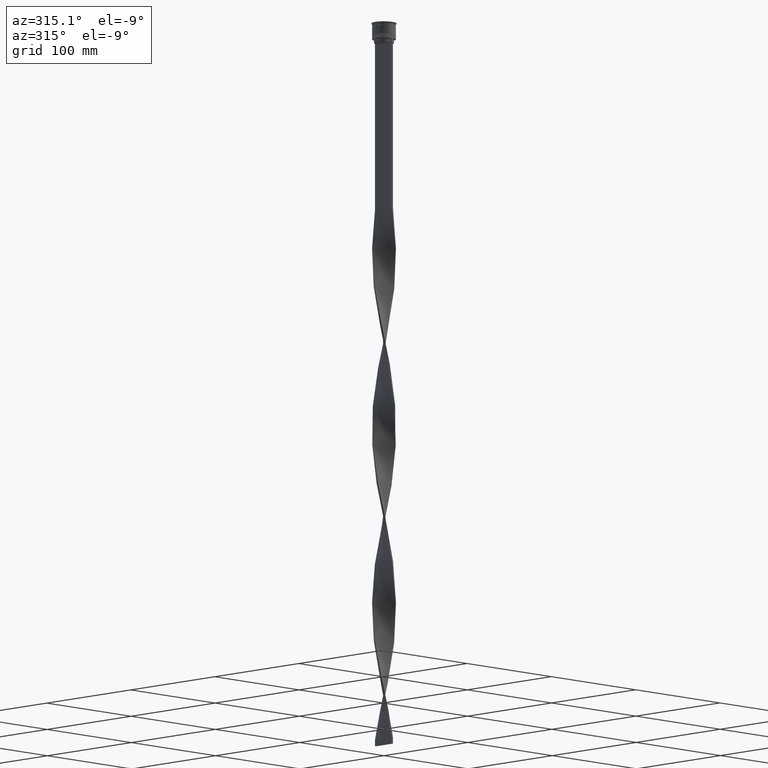
[diagram: clean part render]
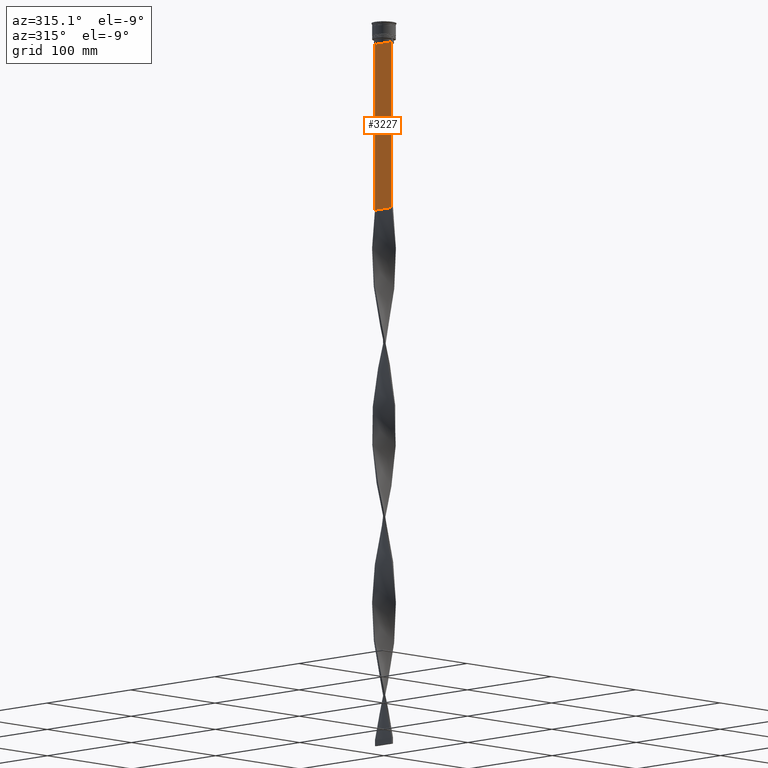
[diagram: same view with one face highlighted and labeled with its STEP entity id]
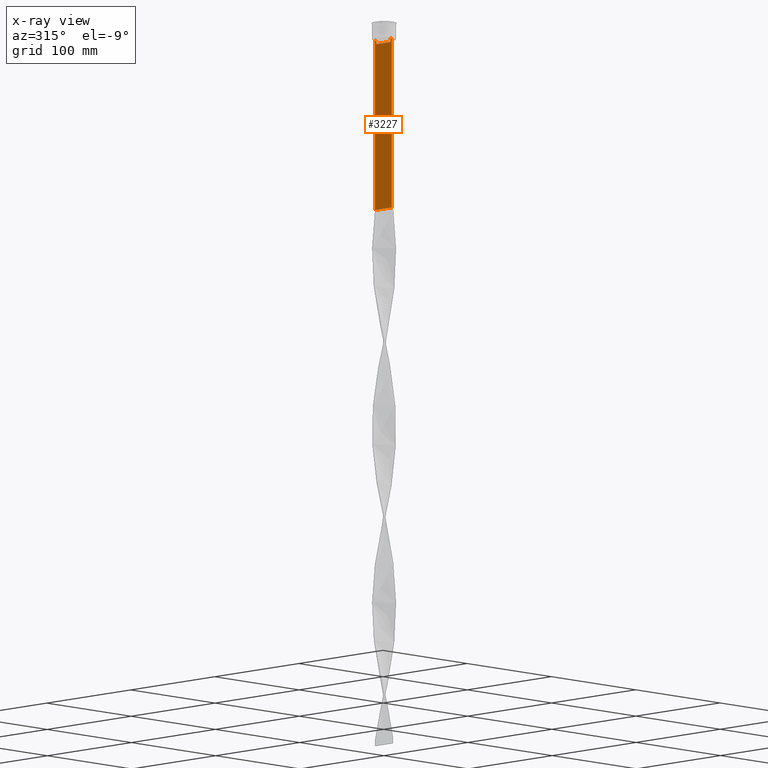
[diagram: x-ray of the same camera — body ghosted, the highlighted face saturated]
A machine part, auxiliary view. The second image highlights one B-rep face of the part: STEP entity #3227.
The next image is the same camera in x-ray: the body ghosted, the highlighted face saturated — about 0% of this face is hidden behind the body in this view.
In plain terms, the highlighted planar face has unit normal (-1, 0, 0).
Its self-contained STEP definition (entity closure, byte-faithful):
#90 = CARTESIAN_POINT ( 'NONE',  ( -0.7499999999999997780, -8.366450860430608927, 0.000000000000000000 ) ) ;
#146 = CARTESIAN_POINT ( 'NONE',  ( -0.7499999999999997780, -8.701063080777123204, -14.16668447713511547 ) ) ;
#181 = LINE ( 'NONE', #1965, #2978 ) ;
#241 = ORIENTED_EDGE ( 'NONE', *, *, #2890, .F. ) ;
#296 = VECTOR ( 'NONE', #2449, 1000.000000000000000 ) ;
#339 = CARTESIAN_POINT ( 'NONE',  ( -0.7499999999999997780, -8.868342573446296839, -14.00000000000000178 ) ) ;
#343 = CARTESIAN_POINT ( 'NONE',  ( -0.7499999999999997780, 9.871550030263740894, -14.00000000000000178 ) ) ;
#357 = EDGE_CURVE ( 'NONE', #772, #1950, #2694, .T. ) ;
#474 = CARTESIAN_POINT ( 'NONE',  ( -0.7499999999999997780, -8.366450860430608927, -17.00000000000000000 ) ) ;
#530 = AXIS2_PLACEMENT_3D ( 'NONE', #3839, #4191, #4486 ) ;
#606 = VECTOR ( 'NONE', #3331, 1000.000000000000000 ) ;
#617 = EDGE_CURVE ( 'NONE', #3863, #2090, #1628, .T. ) ;
#679 = CARTESIAN_POINT ( 'NONE',  ( -0.7499999999999997780, -10.00000000000000533, -14.00000000000000178 ) ) ;
#772 = VERTEX_POINT ( 'NONE', #339 ) ;
#936 = VERTEX_POINT ( 'NONE', #1224 ) ;
#937 = DIRECTION ( 'NONE',  ( 0.000000000000000000, -1.000000000000000000, 0.000000000000000000 ) ) ;
#942 = CARTESIAN_POINT ( 'NONE',  ( -0.7499999999999997780, -8.366450860430608927, -14.50000000000000000 ) ) ;
#971 = CARTESIAN_POINT ( 'NONE',  ( -0.7499999999999997780, -10.00000000000000533, -14.00000000000000178 ) ) ;
#975 = EDGE_CURVE ( 'NONE', #1622, #2275, #1178, .T. ) ;
#1012 = EDGE_CURVE ( 'NONE', #1248, #3343, #3266, .T. ) ;
#1083 = CARTESIAN_POINT ( 'NONE',  ( -0.7499999999999997780, 8.701063075415252257, -14.16668448247791723 ) ) ;
#1164 = VERTEX_POINT ( 'NONE', #3361 ) ;
#1178 = LINE ( 'NONE', #3668, #606 ) ;
#1180 = LINE ( 'NONE', #3313, #4214 ) ;
#1189 = EDGE_CURVE ( 'NONE', #1302, #1786, #2960, .T. ) ;
#1192 = DIRECTION ( 'NONE',  ( 0.000000000000000000, -1.000000000000000000, 0.000000000000000000 ) ) ;
#1224 = CARTESIAN_POINT ( 'NONE',  ( -0.7499999999999997780, 8.366450860430608927, -17.00000000000000000 ) ) ;
#1239 = EDGE_CURVE ( 'NONE', #3343, #772, #2799, .T. ) ;
#1248 = VERTEX_POINT ( 'NONE', #474 ) ;
#1302 = VERTEX_POINT ( 'NONE', #343 ) ;
#1308 = DIRECTION ( 'NONE',  ( 0.000000000000000000, 0.000000000000000000, -1.000000000000000000 ) ) ;
#1375 = FACE_OUTER_BOUND ( 'NONE', #2875, .T. ) ;
#1400 = ORIENTED_EDGE ( 'NONE', *, *, #975, .T. ) ;
#1438 = ORIENTED_EDGE ( 'NONE', *, *, #3488, .F. ) ;
#1569 = CARTESIAN_POINT ( 'NONE',  ( -0.7499999999999997780, -8.533766903463440912, -14.33335220807192201 ) ) ;
#1622 = VERTEX_POINT ( 'NONE', #4124 ) ;
#1628 = LINE ( 'NONE', #4443, #4332 ) ;
#1640 = VECTOR ( 'NONE', #1192, 1000.000000000000000 ) ;
#1786 = VERTEX_POINT ( 'NONE', #3921 ) ;
#1935 = ORIENTED_EDGE ( 'NONE', *, *, #3191, .F. ) ;
#1950 = VERTEX_POINT ( 'NONE', #4113 ) ;
#1961 = CARTESIAN_POINT ( 'NONE',  ( -0.7499999999999997780, -8.366450860430608927, -14.50000000000000000 ) ) ;
#1965 = CARTESIAN_POINT ( 'NONE',  ( -0.7499999999999997780, 8.400000000000003908, -17.00000000000000000 ) ) ;
#1994 = ORIENTED_EDGE ( 'NONE', *, *, #1239, .F. ) ;
#2047 = DIRECTION ( 'NONE',  ( 0.000000000000000000, -1.000000000000000000, 0.000000000000000000 ) ) ;
#2063 = EDGE_CURVE ( 'NONE', #1950, #3863, #4137, .T. ) ;
#2085 = CARTESIAN_POINT ( 'NONE',  ( -0.7499999999999997780, 8.868342573446296839, -14.00000000000000178 ) ) ;
#2090 = VERTEX_POINT ( 'NONE', #2795 ) ;
#2228 = DIRECTION ( 'NONE',  ( -0.000000000000000000, -0.000000000000000000, 1.000000000000000000 ) ) ;
#2275 = VERTEX_POINT ( 'NONE', #4259 ) ;
#2423 = CARTESIAN_POINT ( 'NONE',  ( -0.7499999999999997780, -10.00000000000000533, -157.9999999999999716 ) ) ;
#2428 = B_SPLINE_CURVE_WITH_KNOTS ( 'NONE', 3,
 ( #2085, #1083, #2460, #4550 ),
 .UNSPECIFIED., .F., .F.,
 ( 4, 4 ),
 ( 0.01512225952876174867, 0.01583070519299695222 ),
 .UNSPECIFIED. ) ;
#2449 = DIRECTION ( 'NONE',  ( 0.000000000000000000, 1.000000000000000000, 0.000000000000000000 ) ) ;
#2460 = CARTESIAN_POINT ( 'NONE',  ( -0.7499999999999997780, 8.533766897779926808, -14.33335221373273782 ) ) ;
#2670 = ORIENTED_EDGE ( 'NONE', *, *, #1012, .F. ) ;
#2694 = LINE ( 'NONE', #4081, #3425 ) ;
#2795 = CARTESIAN_POINT ( 'NONE',  ( -0.7499999999999998890, -10.00000000000000533, -157.9999999999999716 ) ) ;
#2798 = PLANE ( 'NONE',  #530 ) ;
#2799 = B_SPLINE_CURVE_WITH_KNOTS ( 'NONE', 3,
 ( #1961, #1569, #146, #3655 ),
 .UNSPECIFIED., .F., .F.,
 ( 4, 4 ),
 ( 0.03866293624047253963, 0.03937282246709321309 ),
 .UNSPECIFIED. ) ;
#2821 = LINE ( 'NONE', #679, #4287 ) ;
#2875 = EDGE_LOOP ( 'NONE', ( #1438, #4563, #3917, #1400, #1935, #2951, #4500, #4399, #1994, #2670, #241, #4337 ) ) ;
#2890 = EDGE_CURVE ( 'NONE', #936, #1248, #181, .T. ) ;
#2951 = ORIENTED_EDGE ( 'NONE', *, *, #617, .F. ) ;
#2960 = LINE ( 'NONE', #4359, #1640 ) ;
#2978 = VECTOR ( 'NONE', #3383, 1000.000000000000000 ) ;
#3106 = EDGE_CURVE ( 'NONE', #1622, #1302, #2821, .T. ) ;
#3191 = EDGE_CURVE ( 'NONE', #2090, #2275, #4539, .T. ) ;
#3227 = ADVANCED_FACE ( 'NONE', ( #1375 ), #2798, .T. ) ;
#3266 = LINE ( 'NONE', #90, #4302 ) ;
#3313 = CARTESIAN_POINT ( 'NONE',  ( -0.7499999999999997780, 8.366450860430608927, 0.000000000000000000 ) ) ;
#3331 = DIRECTION ( 'NONE',  ( 0.000000000000000000, 0.000000000000000000, -1.000000000000000000 ) ) ;
#3343 = VERTEX_POINT ( 'NONE', #942 ) ;
#3361 = CARTESIAN_POINT ( 'NONE',  ( -0.7499999999999997780, 8.366450860430608927, -14.50000000000000000 ) ) ;
#3383 = DIRECTION ( 'NONE',  ( 0.000000000000000000, -1.000000000000000000, 0.000000000000000000 ) ) ;
#3425 = VECTOR ( 'NONE', #937, 1000.000000000000000 ) ;
#3488 = EDGE_CURVE ( 'NONE', #1786, #1164, #2428, .T. ) ;
#3644 = CARTESIAN_POINT ( 'NONE',  ( -0.7499999999999997780, -10.00000000000000533, -14.00000000000000178 ) ) ;
#3655 = CARTESIAN_POINT ( 'NONE',  ( -0.7499999999999997780, -8.868342573446296839, -14.00000000000000178 ) ) ;
#3668 = CARTESIAN_POINT ( 'NONE',  ( -0.7499999999999997780, 9.999999999999998224, 6.056171120131581098 ) ) ;
#3784 = DIRECTION ( 'NONE',  ( 0.000000000000000000, -1.000000000000000000, 0.000000000000000000 ) ) ;
#3839 = CARTESIAN_POINT ( 'NONE',  ( -0.7499999999999997780, -10.00000000000000533, 6.056171120131581098 ) ) ;
#3863 = VERTEX_POINT ( 'NONE', #3644 ) ;
#3917 = ORIENTED_EDGE ( 'NONE', *, *, #3106, .F. ) ;
#3921 = CARTESIAN_POINT ( 'NONE',  ( -0.7499999999999997780, 8.868342573446296839, -14.00000000000000178 ) ) ;
#4012 = EDGE_CURVE ( 'NONE', #1164, #936, #1180, .T. ) ;
#4081 = CARTESIAN_POINT ( 'NONE',  ( -0.7499999999999997780, -10.00000000000000533, -14.00000000000000178 ) ) ;
#4113 = CARTESIAN_POINT ( 'NONE',  ( -0.7499999999999997780, -9.871550030263740894, -14.00000000000000178 ) ) ;
#4124 = CARTESIAN_POINT ( 'NONE',  ( -0.7499999999999997780, 9.999999999999998224, -14.00000000000000178 ) ) ;
#4137 = LINE ( 'NONE', #971, #4430 ) ;
#4191 = DIRECTION ( 'NONE',  ( -1.000000000000000000, 0.000000000000000000, 0.000000000000000000 ) ) ;
#4214 = VECTOR ( 'NONE', #4254, 1000.000000000000000 ) ;
#4254 = DIRECTION ( 'NONE',  ( 0.000000000000000000, 0.000000000000000000, -1.000000000000000000 ) ) ;
#4259 = CARTESIAN_POINT ( 'NONE',  ( -0.7499999999999997780, 9.999999999999998224, -157.9999999999999716 ) ) ;
#4287 = VECTOR ( 'NONE', #2047, 1000.000000000000000 ) ;
#4302 = VECTOR ( 'NONE', #2228, 1000.000000000000000 ) ;
#4332 = VECTOR ( 'NONE', #1308, 1000.000000000000000 ) ;
#4337 = ORIENTED_EDGE ( 'NONE', *, *, #4012, .F. ) ;
#4359 = CARTESIAN_POINT ( 'NONE',  ( -0.7499999999999997780, -10.00000000000000533, -14.00000000000000178 ) ) ;
#4399 = ORIENTED_EDGE ( 'NONE', *, *, #357, .F. ) ;
#4430 = VECTOR ( 'NONE', #3784, 1000.000000000000000 ) ;
#4443 = CARTESIAN_POINT ( 'NONE',  ( -0.7499999999999997780, -10.00000000000000533, 6.056171120131581098 ) ) ;
#4486 = DIRECTION ( 'NONE',  ( 0.000000000000000000, 0.000000000000000000, 1.000000000000000000 ) ) ;
#4500 = ORIENTED_EDGE ( 'NONE', *, *, #2063, .F. ) ;
#4539 = LINE ( 'NONE', #2423, #296 ) ;
#4550 = CARTESIAN_POINT ( 'NONE',  ( -0.7499999999999997780, 8.366450860430608927, -14.50000000000000000 ) ) ;
#4563 = ORIENTED_EDGE ( 'NONE', *, *, #1189, .F. ) ;